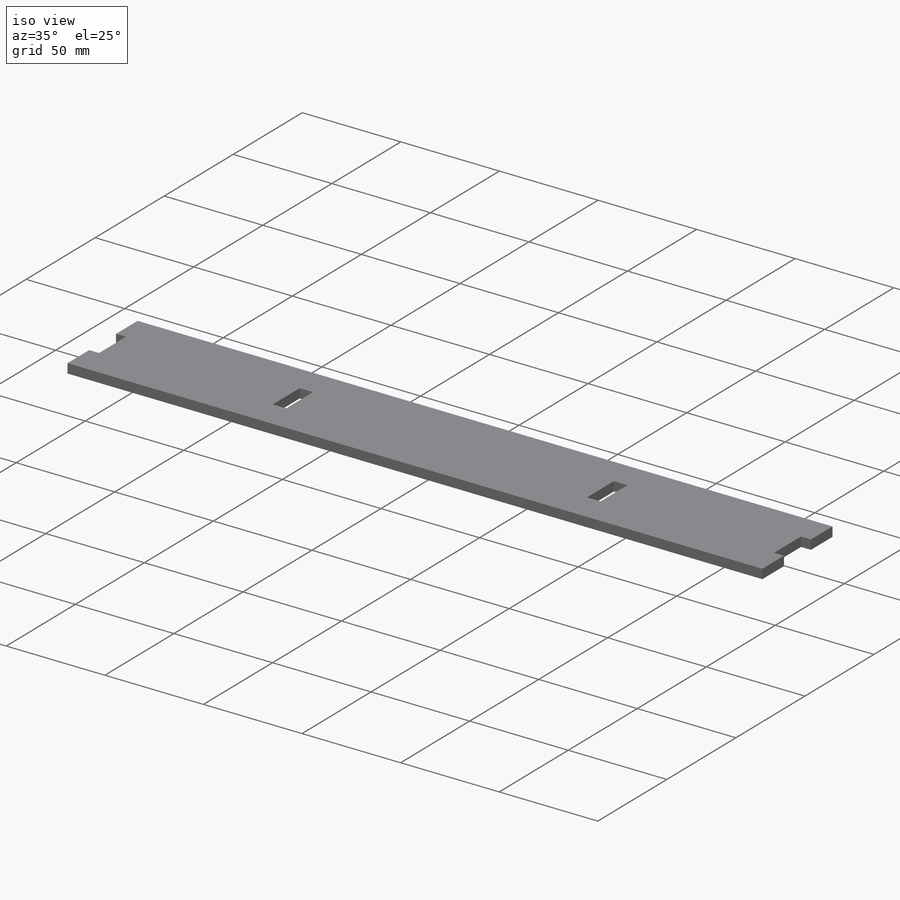
[diagram: iso view]
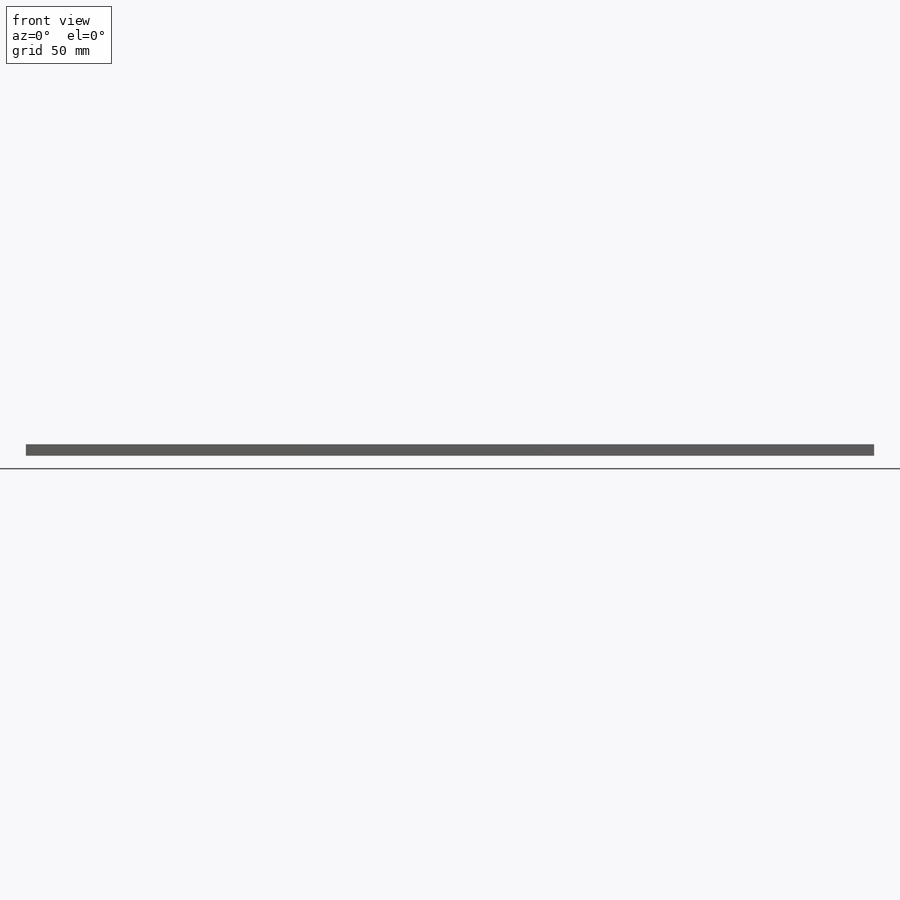
[diagram: front view]
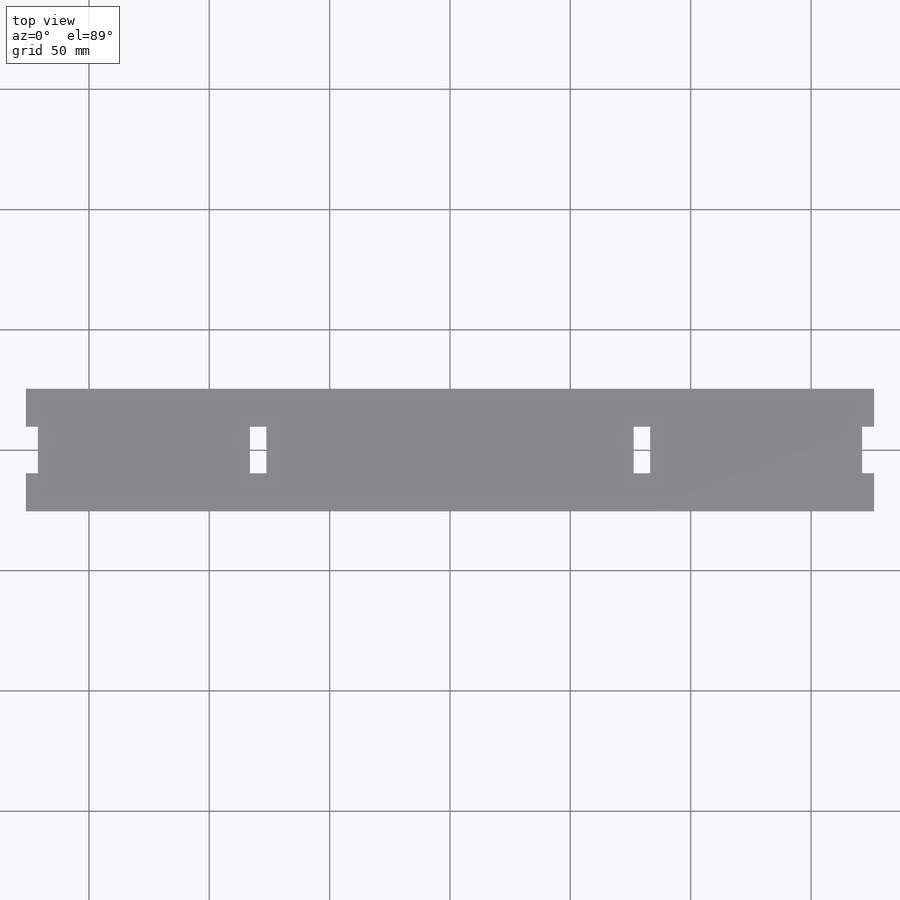
[diagram: top view]
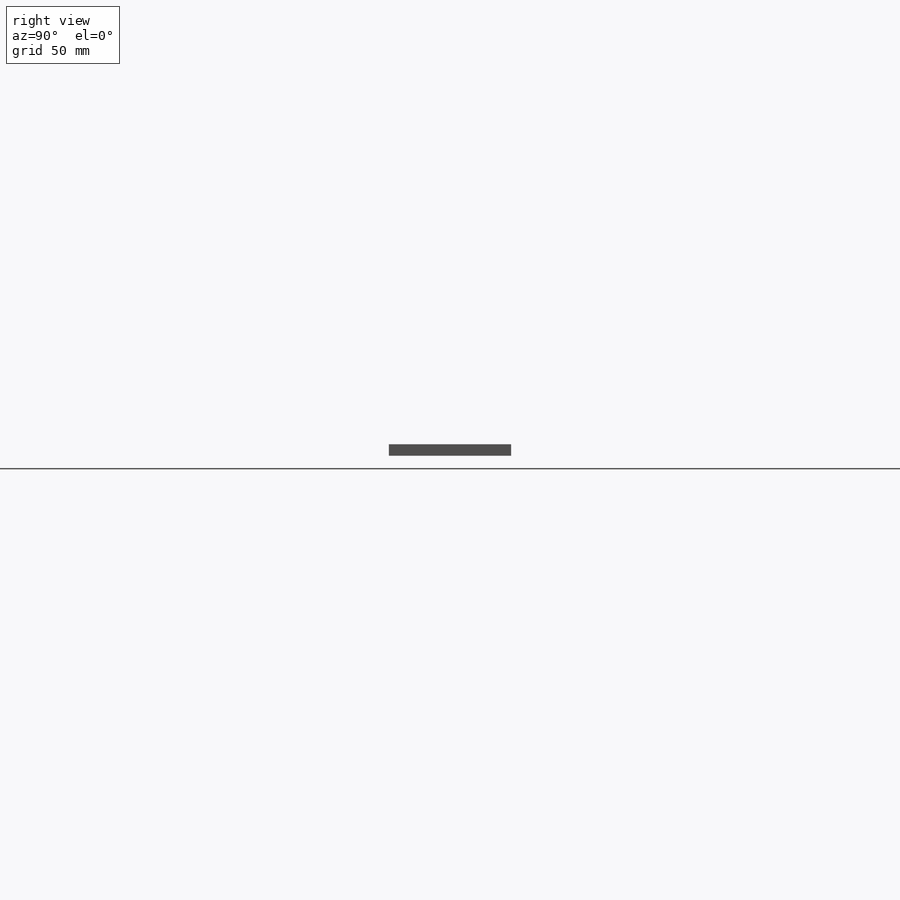
[diagram: right view]
SOLIDWORKS PART (.sldprt)
format: sldprt  version: not decoded by parser v0  size: 251,904 bytes
history: native  units: mm
features: sketch x5, cut_extrude x3, extrude x2, material x1 (+13 scaffold rows collapsed)
feature tree (24):
  scaffold x13  (default folders/planes/origin — collapsed)
  material  "Plain Carbon Steel"
  sketch  "Sketch1"  dims[D1=177.8mm D2=25.4mm]
  extrude  "Boss-Extrude1"  Depth=4.7625mm
  sketch  "Sketch2"  dims[c1.D1=~18.963321mm c1.D2=6.35mm c2.D1=~18.963321mm c2.D2=6.35mm c3.D1=~18.963321mm c3.D2=6.35mm c4.D1=~18.963321mm c4.D2=6.35mm c5.D1=0.254mm]
  cut_extrude  "Cut-Extrude1"  [1 undecoded]
  sketch  "Sketch3"  dims[D2=1.5875mm D3=1.5875mm D1=0.0mm]
  cut_extrude  "Cut-Extrude2"  [1 undecoded]
  sketch  "Sketch4"  dims[c1.D1=~19.471321mm c1.D2=~1.903176mm c2.D1=~19.471321mm c2.D2=~1.659652mm c3.D1=152.527mm]
  extrude  "Boss-Extrude2"  [1 undecoded]
  sketch  "Sketch5"  dims[c1.D1=~16.246479mm c1.D2=~27.265219mm c2.D1=~22.681597mm c2.D2=~18.593729mm c3.D1=6.858mm c3.D2=~19.471321mm]
  cut_extrude  "Cut-Extrude4"  [1 undecoded]
decode coverage: 6 of 10 modeling features carry decoded parameters
note: ~ marks probable driven/reference dimensions
note: 4 parameter values undecoded
summary: no parameter record found for 4 features
note: suppression state not decoded; provenance and decode notes live in map.json
